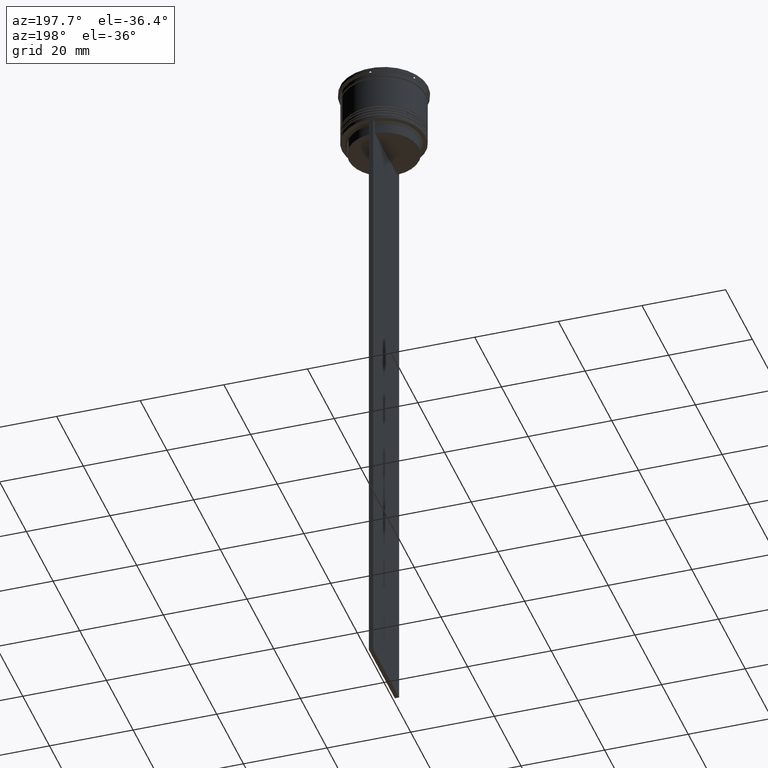
[diagram: clean part render]
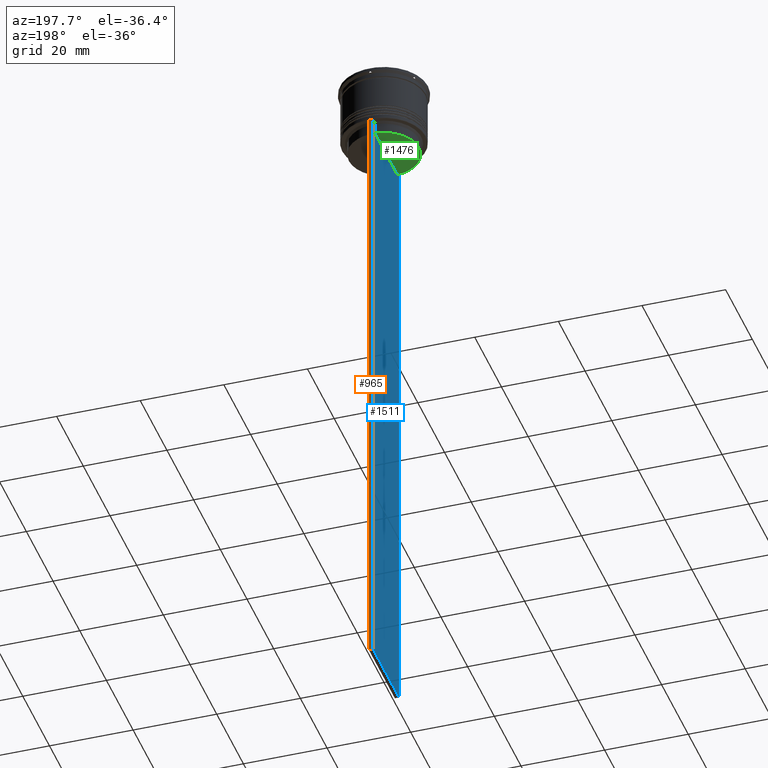
[diagram: same view with three faces highlighted in distinct colors, each labeled with its STEP entity id]
A machine part, auxiliary view with three faces highlighted in distinct colors.
Their STEP definitions:

[orange] entity #965 — the highlighted planar face has unit normal (0, -1, -0).
#25 = VERTEX_POINT ( 'NONE', #491 ) ;
#85 = CARTESIAN_POINT ( 'NONE',  ( -0.5000000000000001110, 9.750000000000001776, 5.525624189766635830 ) ) ;
#148 = ORIENTED_EDGE ( 'NONE', *, *, #1771, .T. ) ;
#197 = EDGE_CURVE ( 'NONE', #2058, #25, #374, .T. ) ;
#207 = CARTESIAN_POINT ( 'NONE',  ( 0.4999999999999998890, 9.750000000000001776, -14.00000000000000178 ) ) ;
#229 = DIRECTION ( 'NONE',  ( 0.000000000000000000, 0.000000000000000000, -1.000000000000000000 ) ) ;
#374 = LINE ( 'NONE', #1137, #1460 ) ;
#446 = CARTESIAN_POINT ( 'NONE',  ( 0.4999999999999998890, 9.750000000000001776, -14.00000000000000178 ) ) ;
#477 = CARTESIAN_POINT ( 'NONE',  ( 0.4999999999999998890, 9.750000000000001776, -163.9999999999999716 ) ) ;
#491 = CARTESIAN_POINT ( 'NONE',  ( -0.5000000000000001110, 9.750000000000001776, -163.9999999999999716 ) ) ;
#542 = DIRECTION ( 'NONE',  ( -1.000000000000000000, 0.000000000000000000, 0.000000000000000000 ) ) ;
#557 = VECTOR ( 'NONE', #665, 1000.000000000000000 ) ;
#665 = DIRECTION ( 'NONE',  ( 0.000000000000000000, 0.000000000000000000, -1.000000000000000000 ) ) ;
#695 = EDGE_CURVE ( 'NONE', #1853, #25, #1885, .T. ) ;
#762 = DIRECTION ( 'NONE',  ( 0.000000000000000000, 0.000000000000000000, -1.000000000000000000 ) ) ;
#775 = DIRECTION ( 'NONE',  ( 0.000000000000000000, -1.000000000000000000, -0.000000000000000000 ) ) ;
#845 = DIRECTION ( 'NONE',  ( 1.000000000000000000, 0.000000000000000000, 0.000000000000000000 ) ) ;
#917 = CARTESIAN_POINT ( 'NONE',  ( -0.5000000000000001110, 9.749999999999998224, -14.00000000000000178 ) ) ;
#965 = ADVANCED_FACE ( 'NONE', ( #2187 ), #1396, .F. ) ;
#1011 = EDGE_CURVE ( 'NONE', #2478, #2058, #1182, .T. ) ;
#1047 = ORIENTED_EDGE ( 'NONE', *, *, #197, .T. ) ;
#1137 = CARTESIAN_POINT ( 'NONE',  ( 0.4999999999999998890, 9.750000000000001776, -163.9999999999999716 ) ) ;
#1182 = LINE ( 'NONE', #1766, #2487 ) ;
#1228 = EDGE_LOOP ( 'NONE', ( #2278, #148, #1724, #1047 ) ) ;
#1396 = PLANE ( 'NONE',  #1890 ) ;
#1460 = VECTOR ( 'NONE', #542, 1000.000000000000000 ) ;
#1724 = ORIENTED_EDGE ( 'NONE', *, *, #1011, .T. ) ;
#1766 = CARTESIAN_POINT ( 'NONE',  ( 0.4999999999999998890, 9.750000000000001776, 5.525624189766635830 ) ) ;
#1771 = EDGE_CURVE ( 'NONE', #1853, #2478, #1878, .T. ) ;
#1853 = VERTEX_POINT ( 'NONE', #917 ) ;
#1878 = LINE ( 'NONE', #446, #2382 ) ;
#1885 = LINE ( 'NONE', #85, #557 ) ;
#1890 = AXIS2_PLACEMENT_3D ( 'NONE', #2575, #775, #762 ) ;
#2058 = VERTEX_POINT ( 'NONE', #477 ) ;
#2187 = FACE_OUTER_BOUND ( 'NONE', #1228, .T. ) ;
#2278 = ORIENTED_EDGE ( 'NONE', *, *, #695, .F. ) ;
#2382 = VECTOR ( 'NONE', #845, 1000.000000000000000 ) ;
#2478 = VERTEX_POINT ( 'NONE', #207 ) ;
#2487 = VECTOR ( 'NONE', #229, 1000.000000000000000 ) ;
#2575 = CARTESIAN_POINT ( 'NONE',  ( 0.4999999999999998890, 9.750000000000001776, 5.525624189766635830 ) ) ;

[blue] entity #1511 — the highlighted planar face has unit normal (-1, 0, 0).
#12 = ORIENTED_EDGE ( 'NONE', *, *, #367, .F. ) ;
#25 = VERTEX_POINT ( 'NONE', #491 ) ;
#51 = CARTESIAN_POINT ( 'NONE',  ( -0.5000000000000001110, -9.749999999999998224, -163.9999999999999716 ) ) ;
#68 = LINE ( 'NONE', #1420, #1103 ) ;
#85 = CARTESIAN_POINT ( 'NONE',  ( -0.5000000000000001110, 9.750000000000001776, 5.525624189766635830 ) ) ;
#119 = CARTESIAN_POINT ( 'NONE',  ( -0.5000000000000001110, -8.885943956609230199, -14.00000000000000178 ) ) ;
#158 = LINE ( 'NONE', #2353, #538 ) ;
#173 = CARTESIAN_POINT ( 'NONE',  ( -0.5000000000000001110, -9.749999999999998224, 5.525624189766635830 ) ) ;
#206 = CARTESIAN_POINT ( 'NONE',  ( -0.5000000000000001110, 8.552060201981381837, -14.33334167021640226 ) ) ;
#240 = CARTESIAN_POINT ( 'NONE',  ( -0.5000000000000001110, -8.385105843100616241, -14.50000000000000000 ) ) ;
#292 = VERTEX_POINT ( 'NONE', #51 ) ;
#324 = CARTESIAN_POINT ( 'NONE',  ( -0.5000000000000001110, -8.552060194457773434, -14.33334167772667023 ) ) ;
#367 = EDGE_CURVE ( 'NONE', #1038, #2056, #911, .T. ) ;
#421 = B_SPLINE_CURVE_WITH_KNOTS ( 'NONE', 3,
 ( #2578, #1988, #206, #614 ),
 .UNSPECIFIED., .F., .F.,
 ( 4, 4 ),
 ( 0.01511546479386908018, 0.01582316445439079997 ),
 .UNSPECIFIED. ) ;
#476 = DIRECTION ( 'NONE',  ( -0.000000000000000000, -0.000000000000000000, 1.000000000000000000 ) ) ;
#484 = AXIS2_PLACEMENT_3D ( 'NONE', #173, #2160, #1154 ) ;
#491 = CARTESIAN_POINT ( 'NONE',  ( -0.5000000000000001110, 9.750000000000001776, -163.9999999999999716 ) ) ;
#496 = VECTOR ( 'NONE', #2289, 1000.000000000000000 ) ;
#524 = VECTOR ( 'NONE', #2509, 1000.000000000000000 ) ;
#538 = VECTOR ( 'NONE', #1559, 1000.000000000000000 ) ;
#557 = VECTOR ( 'NONE', #665, 1000.000000000000000 ) ;
#614 = CARTESIAN_POINT ( 'NONE',  ( -0.5000000000000001110, 8.385105843100616241, -14.50000000000000000 ) ) ;
#615 = EDGE_CURVE ( 'NONE', #1004, #2144, #421, .T. ) ;
#658 = VERTEX_POINT ( 'NONE', #839 ) ;
#665 = DIRECTION ( 'NONE',  ( 0.000000000000000000, 0.000000000000000000, -1.000000000000000000 ) ) ;
#666 = ORIENTED_EDGE ( 'NONE', *, *, #615, .F. ) ;
#692 = CARTESIAN_POINT ( 'NONE',  ( -0.5000000000000001110, -9.749999999999998224, -14.00000000000000178 ) ) ;
#695 = EDGE_CURVE ( 'NONE', #1853, #25, #1885, .T. ) ;
#727 = EDGE_CURVE ( 'NONE', #2056, #658, #2500, .T. ) ;
#740 = EDGE_CURVE ( 'NONE', #966, #1335, #873, .T. ) ;
#750 = CARTESIAN_POINT ( 'NONE',  ( -0.5000000000000001110, -8.385105843100616241, -14.50000000000000000 ) ) ;
#839 = CARTESIAN_POINT ( 'NONE',  ( -0.5000000000000001110, -9.749999999999998224, -14.00000000000000178 ) ) ;
#873 = LINE ( 'NONE', #1424, #976 ) ;
#883 = LINE ( 'NONE', #1672, #496 ) ;
#905 = ORIENTED_EDGE ( 'NONE', *, *, #740, .F. ) ;
#911 = B_SPLINE_CURVE_WITH_KNOTS ( 'NONE', 3,
 ( #750, #324, #1338, #1902 ),
 .UNSPECIFIED., .F., .F.,
 ( 4, 4 ),
 ( 0.03898465126933130243, 0.03969388910599658260 ),
 .UNSPECIFIED. ) ;
#917 = CARTESIAN_POINT ( 'NONE',  ( -0.5000000000000001110, 9.749999999999998224, -14.00000000000000178 ) ) ;
#966 = VERTEX_POINT ( 'NONE', #1170 ) ;
#976 = VECTOR ( 'NONE', #2065, 1000.000000000000000 ) ;
#987 = ORIENTED_EDGE ( 'NONE', *, *, #2263, .F. ) ;
#1004 = VERTEX_POINT ( 'NONE', #2175 ) ;
#1038 = VERTEX_POINT ( 'NONE', #240 ) ;
#1103 = VECTOR ( 'NONE', #2448, 1000.000000000000000 ) ;
#1140 = EDGE_CURVE ( 'NONE', #1853, #1004, #68, .T. ) ;
#1154 = DIRECTION ( 'NONE',  ( 0.000000000000000000, 0.000000000000000000, 1.000000000000000000 ) ) ;
#1170 = CARTESIAN_POINT ( 'NONE',  ( -0.5000000000000001110, 8.385105843100616241, -17.00000000000000000 ) ) ;
#1185 = VECTOR ( 'NONE', #2265, 1000.000000000000000 ) ;
#1212 = CARTESIAN_POINT ( 'NONE',  ( -0.5000000000000001110, -8.385105843100616241, -17.00000000000000000 ) ) ;
#1255 = EDGE_CURVE ( 'NONE', #2144, #966, #1698, .T. ) ;
#1289 = ORIENTED_EDGE ( 'NONE', *, *, #695, .T. ) ;
#1335 = VERTEX_POINT ( 'NONE', #1212 ) ;
#1338 = CARTESIAN_POINT ( 'NONE',  ( -0.5000000000000001110, -8.719005764482790966, -14.16667454151159689 ) ) ;
#1420 = CARTESIAN_POINT ( 'NONE',  ( -0.5000000000000001110, -9.749999999999998224, -14.00000000000000178 ) ) ;
#1424 = CARTESIAN_POINT ( 'NONE',  ( -0.5000000000000001110, 8.400000000000003908, -17.00000000000000000 ) ) ;
#1484 = VECTOR ( 'NONE', #476, 1000.000000000000000 ) ;
#1511 = ADVANCED_FACE ( 'NONE', ( #2573 ), #2358, .T. ) ;
#1559 = DIRECTION ( 'NONE',  ( 0.000000000000000000, 1.000000000000000000, 0.000000000000000000 ) ) ;
#1672 = CARTESIAN_POINT ( 'NONE',  ( -0.5000000000000001110, -9.749999999999998224, 5.525624189766635830 ) ) ;
#1698 = LINE ( 'NONE', #2533, #524 ) ;
#1701 = EDGE_LOOP ( 'NONE', ( #666, #2209, #1289, #1892, #2405, #1873, #12, #987, #905, #2085 ) ) ;
#1727 = CARTESIAN_POINT ( 'NONE',  ( -0.5000000000000001110, 8.385105843100616241, -14.50000000000000000 ) ) ;
#1853 = VERTEX_POINT ( 'NONE', #917 ) ;
#1873 = ORIENTED_EDGE ( 'NONE', *, *, #727, .F. ) ;
#1885 = LINE ( 'NONE', #85, #557 ) ;
#1892 = ORIENTED_EDGE ( 'NONE', *, *, #2428, .F. ) ;
#1902 = CARTESIAN_POINT ( 'NONE',  ( -0.5000000000000001110, -8.885943956609230199, -14.00000000000000178 ) ) ;
#1988 = CARTESIAN_POINT ( 'NONE',  ( -0.5000000000000001110, 8.719005771582351016, -14.16667453442324742 ) ) ;
#2049 = CARTESIAN_POINT ( 'NONE',  ( -0.5000000000000001110, -8.385105843100616241, 0.000000000000000000 ) ) ;
#2056 = VERTEX_POINT ( 'NONE', #119 ) ;
#2065 = DIRECTION ( 'NONE',  ( 0.000000000000000000, -1.000000000000000000, 0.000000000000000000 ) ) ;
#2085 = ORIENTED_EDGE ( 'NONE', *, *, #1255, .F. ) ;
#2144 = VERTEX_POINT ( 'NONE', #1727 ) ;
#2160 = DIRECTION ( 'NONE',  ( -1.000000000000000000, 0.000000000000000000, 0.000000000000000000 ) ) ;
#2175 = CARTESIAN_POINT ( 'NONE',  ( -0.5000000000000001110, 8.885943956609230199, -14.00000000000000178 ) ) ;
#2209 = ORIENTED_EDGE ( 'NONE', *, *, #1140, .F. ) ;
#2263 = EDGE_CURVE ( 'NONE', #1335, #1038, #2299, .T. ) ;
#2265 = DIRECTION ( 'NONE',  ( 0.000000000000000000, -1.000000000000000000, 0.000000000000000000 ) ) ;
#2289 = DIRECTION ( 'NONE',  ( 0.000000000000000000, 0.000000000000000000, -1.000000000000000000 ) ) ;
#2299 = LINE ( 'NONE', #2049, #1484 ) ;
#2353 = CARTESIAN_POINT ( 'NONE',  ( -0.5000000000000001110, -9.749999999999998224, -163.9999999999999716 ) ) ;
#2358 = PLANE ( 'NONE',  #484 ) ;
#2405 = ORIENTED_EDGE ( 'NONE', *, *, #2505, .F. ) ;
#2428 = EDGE_CURVE ( 'NONE', #292, #25, #158, .T. ) ;
#2448 = DIRECTION ( 'NONE',  ( 0.000000000000000000, -1.000000000000000000, 0.000000000000000000 ) ) ;
#2500 = LINE ( 'NONE', #692, #1185 ) ;
#2505 = EDGE_CURVE ( 'NONE', #658, #292, #883, .T. ) ;
#2509 = DIRECTION ( 'NONE',  ( 0.000000000000000000, 0.000000000000000000, -1.000000000000000000 ) ) ;
#2533 = CARTESIAN_POINT ( 'NONE',  ( -0.5000000000000001110, 8.385105843100616241, 0.000000000000000000 ) ) ;
#2573 = FACE_OUTER_BOUND ( 'NONE', #1701, .T. ) ;
#2578 = CARTESIAN_POINT ( 'NONE',  ( -0.5000000000000001110, 8.885943956609230199, -14.00000000000000178 ) ) ;

[green] entity #1476 — the highlighted planar face has unit normal (0, -0, 1).
#522 = DIRECTION ( 'NONE',  ( 1.000000000000000000, 0.000000000000000000, 0.000000000000000000 ) ) ;
#533 = CARTESIAN_POINT ( 'NONE',  ( 0.000000000000000000, 0.000000000000000000, -17.00000000000000000 ) ) ;
#610 = CARTESIAN_POINT ( 'NONE',  ( 0.000000000000000000, 8.400000000000003908, -17.00000000000000000 ) ) ;
#625 = DIRECTION ( 'NONE',  ( 0.000000000000000000, -0.000000000000000000, 1.000000000000000000 ) ) ;
#740 = EDGE_CURVE ( 'NONE', #966, #1335, #873, .T. ) ;
#816 = EDGE_CURVE ( 'NONE', #966, #1335, #2027, .T. ) ;
#873 = LINE ( 'NONE', #1424, #976 ) ;
#966 = VERTEX_POINT ( 'NONE', #1170 ) ;
#976 = VECTOR ( 'NONE', #2065, 1000.000000000000000 ) ;
#1107 = ORIENTED_EDGE ( 'NONE', *, *, #740, .T. ) ;
#1128 = DIRECTION ( 'NONE',  ( 1.000000000000000000, 0.000000000000000000, 0.000000000000000000 ) ) ;
#1170 = CARTESIAN_POINT ( 'NONE',  ( -0.5000000000000001110, 8.385105843100616241, -17.00000000000000000 ) ) ;
#1212 = CARTESIAN_POINT ( 'NONE',  ( -0.5000000000000001110, -8.385105843100616241, -17.00000000000000000 ) ) ;
#1301 = AXIS2_PLACEMENT_3D ( 'NONE', #610, #625, #1128 ) ;
#1335 = VERTEX_POINT ( 'NONE', #1212 ) ;
#1424 = CARTESIAN_POINT ( 'NONE',  ( -0.5000000000000001110, 8.400000000000003908, -17.00000000000000000 ) ) ;
#1476 = ADVANCED_FACE ( 'NONE', ( #2407 ), #2421, .F. ) ;
#1933 = EDGE_LOOP ( 'NONE', ( #2270, #1107 ) ) ;
#2027 = CIRCLE ( 'NONE', #2568, 8.400000000000003908 ) ;
#2065 = DIRECTION ( 'NONE',  ( 0.000000000000000000, -1.000000000000000000, 0.000000000000000000 ) ) ;
#2102 = DIRECTION ( 'NONE',  ( -0.000000000000000000, -0.000000000000000000, 1.000000000000000000 ) ) ;
#2270 = ORIENTED_EDGE ( 'NONE', *, *, #816, .F. ) ;
#2407 = FACE_OUTER_BOUND ( 'NONE', #1933, .T. ) ;
#2421 = PLANE ( 'NONE',  #1301 ) ;
#2568 = AXIS2_PLACEMENT_3D ( 'NONE', #533, #2102, #522 ) ;